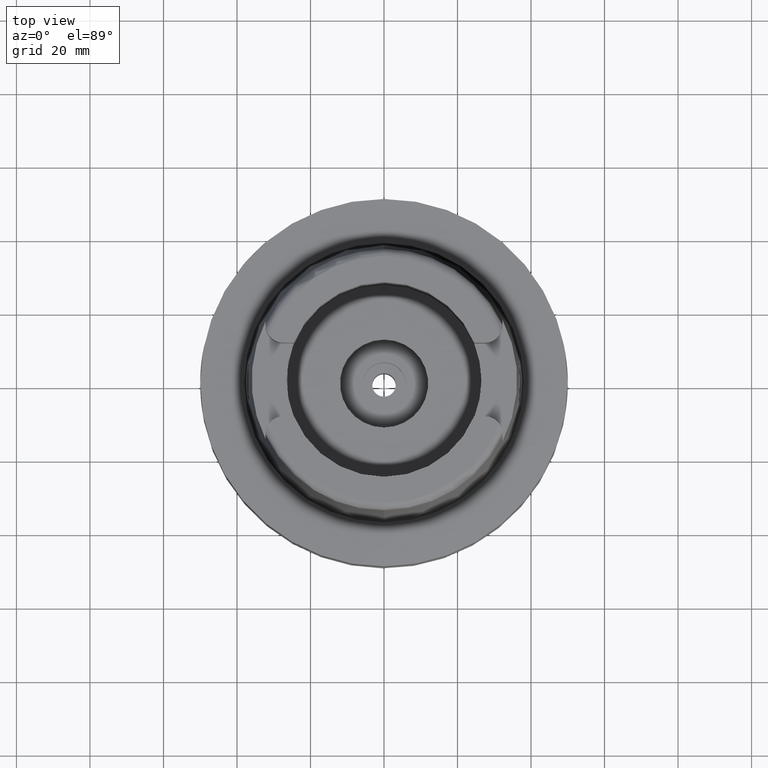
[diagram: clean part render]
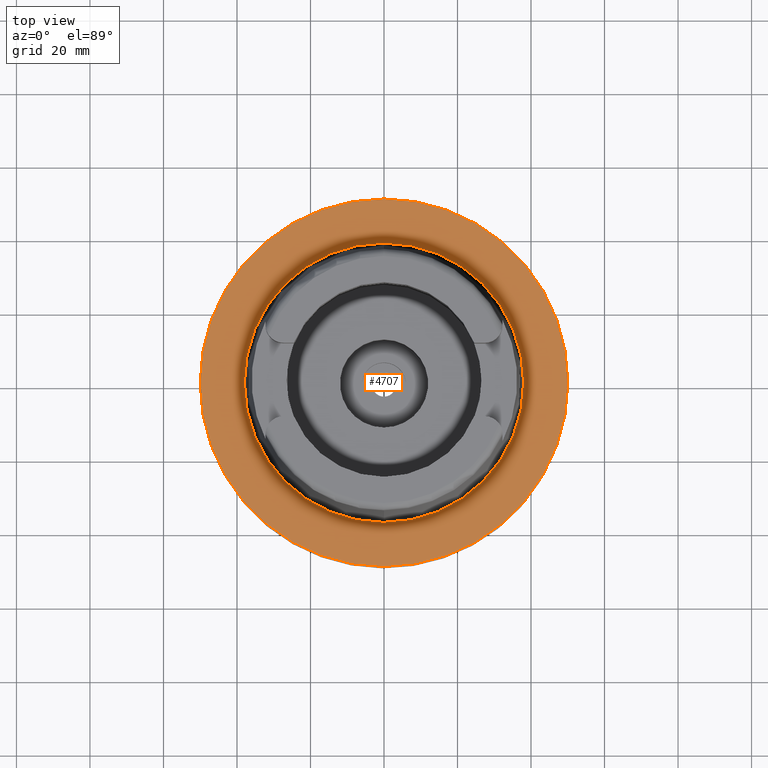
[diagram: same view with one face highlighted and labeled with its STEP entity id]
A machine part, top view. The second image highlights one B-rep face of the part: STEP entity #4707.
In plain terms, the highlighted planar face has unit normal (0, 0, 1).
Its self-contained STEP definition (entity closure, byte-faithful):
#98 = DIRECTION ( 'NONE',  ( 0.0000000000000000000, -1.000000000000000000, 0.0000000000000000000 ) ) ;
#402 = EDGE_CURVE ( 'NONE', #4761, #1481, #1773, .T. ) ;
#454 = CARTESIAN_POINT ( 'NONE',  ( 0.0000000000000000000, 0.0000000000000000000, 1.023181539494999863E-12 ) ) ;
#608 = DIRECTION ( 'NONE',  ( 0.0000000000000000000, 0.0000000000000000000, -1.000000000000000000 ) ) ;
#791 = AXIS2_PLACEMENT_3D ( 'NONE', #454, #886, #2229 ) ;
#798 = CARTESIAN_POINT ( 'NONE',  ( 0.0000000000000000000, 0.0000000000000000000, 1.421085471519999843E-14 ) ) ;
#886 = DIRECTION ( 'NONE',  ( 0.0000000000000000000, 0.0000000000000000000, 1.000000000000000000 ) ) ;
#1193 = EDGE_CURVE ( 'NONE', #1481, #4761, #2607, .T. ) ;
#1223 = CIRCLE ( 'NONE', #5318, 50.00000000000000000 ) ;
#1252 = DIRECTION ( 'NONE',  ( 1.000000000000000000, 0.0000000000000000000, 0.0000000000000000000 ) ) ;
#1293 = CARTESIAN_POINT ( 'NONE',  ( 0.0000000000000000000, 0.0000000000000000000, -1.989519660127999812E-13 ) ) ;
#1301 = AXIS2_PLACEMENT_3D ( 'NONE', #3172, #608, #98 ) ;
#1309 = CARTESIAN_POINT ( 'NONE',  ( 0.0000000000000000000, 38.00001658251999714, 1.023181539494999863E-12 ) ) ;
#1391 = DIRECTION ( 'NONE',  ( 0.0000000000000000000, 0.0000000000000000000, 1.000000000000000000 ) ) ;
#1481 = VERTEX_POINT ( 'NONE', #1309 ) ;
#1773 = CIRCLE ( 'NONE', #791, 38.00001658251999714 ) ;
#1879 = EDGE_CURVE ( 'NONE', #5635, #3287, #2103, .T. ) ;
#2059 = FACE_OUTER_BOUND ( 'NONE', #3827, .T. ) ;
#2100 = DIRECTION ( 'NONE',  ( 0.0000000000000000000, 0.0000000000000000000, -1.000000000000000000 ) ) ;
#2103 = CIRCLE ( 'NONE', #1301, 50.00000000000000000 ) ;
#2228 = ORIENTED_EDGE ( 'NONE', *, *, #1879, .F. ) ;
#2229 = DIRECTION ( 'NONE',  ( 0.0000000000000000000, -1.000000000000000000, 0.0000000000000000000 ) ) ;
#2341 = ORIENTED_EDGE ( 'NONE', *, *, #1193, .F. ) ;
#2607 = CIRCLE ( 'NONE', #3348, 38.00001658251999714 ) ;
#2920 = DIRECTION ( 'NONE',  ( 0.0000000000000000000, 0.0000000000000000000, 1.000000000000000000 ) ) ;
#3019 = ORIENTED_EDGE ( 'NONE', *, *, #3333, .F. ) ;
#3040 = AXIS2_PLACEMENT_3D ( 'NONE', #798, #2920, #1252 ) ;
#3172 = CARTESIAN_POINT ( 'NONE',  ( 0.0000000000000000000, 0.0000000000000000000, -1.989519660127999812E-13 ) ) ;
#3287 = VERTEX_POINT ( 'NONE', #5639 ) ;
#3333 = EDGE_CURVE ( 'NONE', #3287, #5635, #1223, .T. ) ;
#3348 = AXIS2_PLACEMENT_3D ( 'NONE', #4455, #1391, #5275 ) ;
#3409 = CARTESIAN_POINT ( 'NONE',  ( 0.0000000000000000000, -50.00000000000000000, -1.989519660127999812E-13 ) ) ;
#3613 = CARTESIAN_POINT ( 'NONE',  ( 0.0000000000000000000, -38.00001658251999714, 6.110667527536999933E-13 ) ) ;
#3827 = EDGE_LOOP ( 'NONE', ( #3019, #2228 ) ) ;
#3843 = FACE_BOUND ( 'NONE', #4813, .T. ) ;
#3947 = ORIENTED_EDGE ( 'NONE', *, *, #402, .F. ) ;
#4455 = CARTESIAN_POINT ( 'NONE',  ( 0.0000000000000000000, 0.0000000000000000000, 1.023181539494999863E-12 ) ) ;
#4707 = ADVANCED_FACE ( 'NONE', ( #2059, #3843 ), #5042, .T. ) ;
#4721 = DIRECTION ( 'NONE',  ( 0.0000000000000000000, 1.000000000000000000, 0.0000000000000000000 ) ) ;
#4761 = VERTEX_POINT ( 'NONE', #3613 ) ;
#4813 = EDGE_LOOP ( 'NONE', ( #2341, #3947 ) ) ;
#5042 = PLANE ( 'NONE',  #3040 ) ;
#5275 = DIRECTION ( 'NONE',  ( 0.0000000000000000000, 1.000000000000000000, 0.0000000000000000000 ) ) ;
#5318 = AXIS2_PLACEMENT_3D ( 'NONE', #1293, #2100, #4721 ) ;
#5635 = VERTEX_POINT ( 'NONE', #3409 ) ;
#5639 = CARTESIAN_POINT ( 'NONE',  ( 0.0000000000000000000, 50.00000000000000000, -1.184237892933999964E-13 ) ) ;